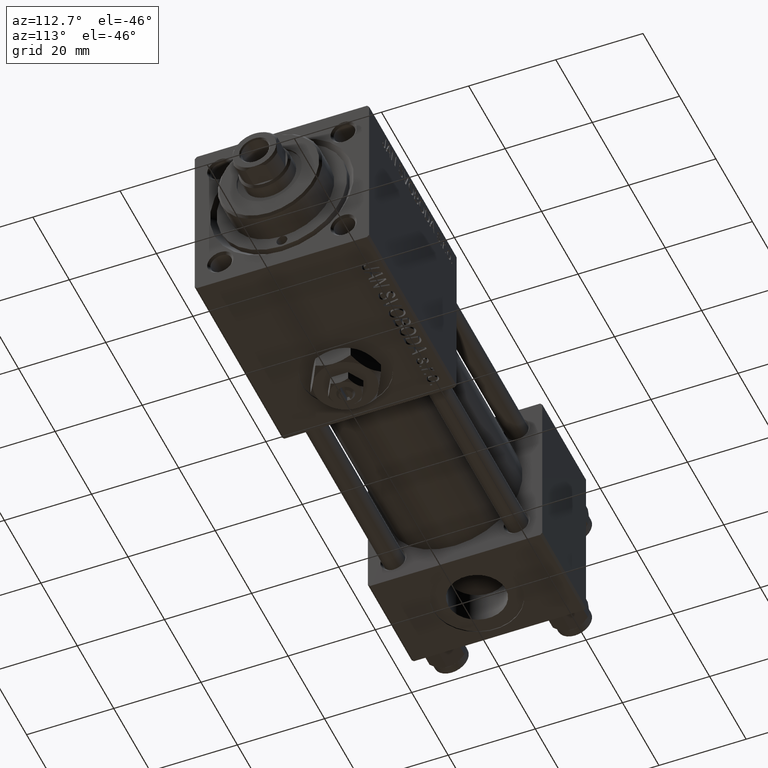
[diagram: clean part render]
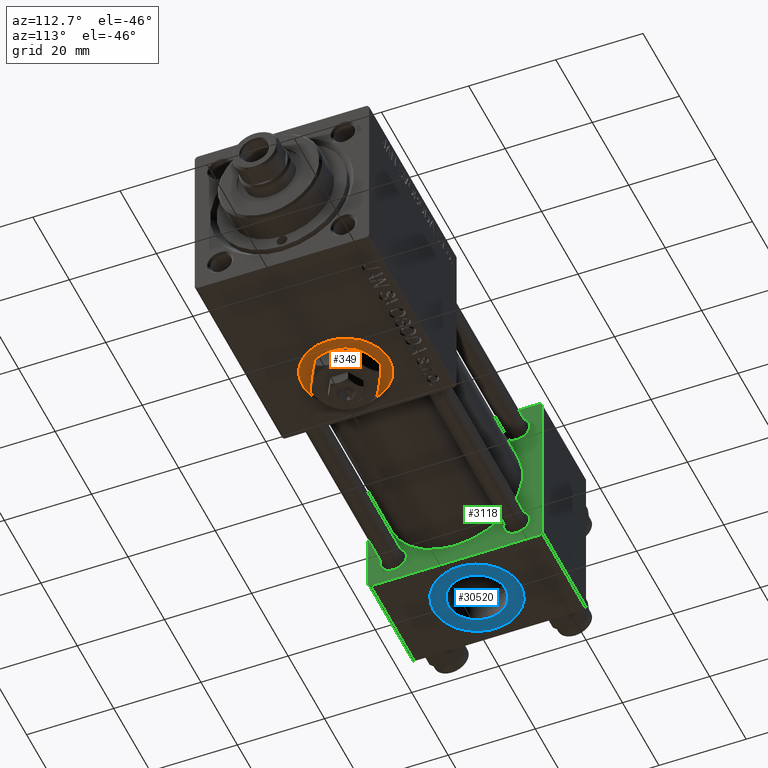
[diagram: same view with three faces highlighted in distinct colors, each labeled with its STEP entity id]
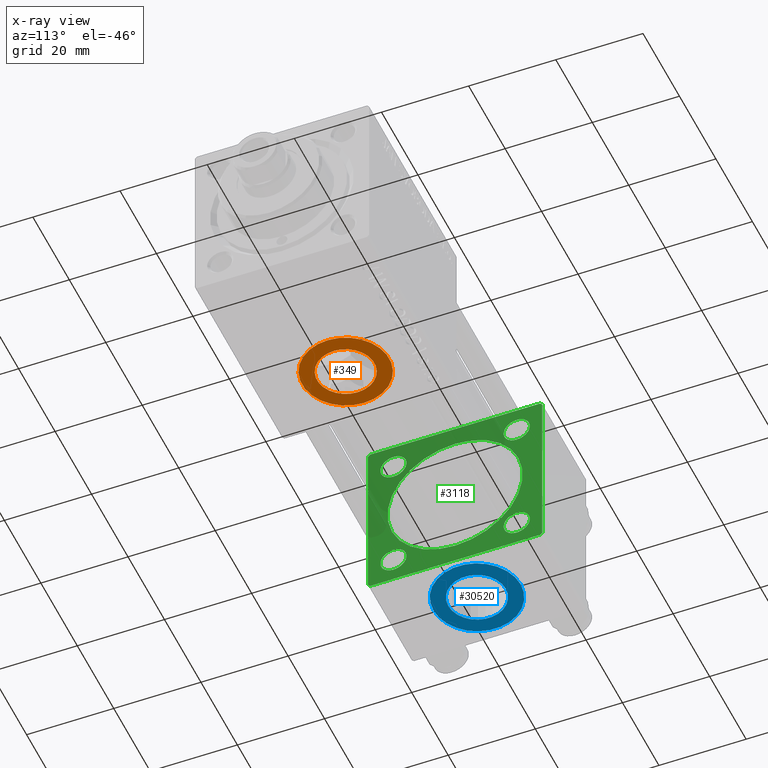
[diagram: x-ray of the same camera — body ghosted, the three highlighted faces saturated]
A machine part, auxiliary view with three faces highlighted in distinct colors.
The next image is the same camera in x-ray (body ghosted, the three faces saturated) — at least one of them is partly hidden behind the body in this view.
Their STEP definitions:

[orange] entity #349 — the highlighted planar face has unit normal (0, 0, -1).
#34 = CARTESIAN_POINT ( 'NONE',  ( 90.58000000000001251, 8.058175938389587461E-16, -19.80000000000000071 ) ) ;
#349 = ADVANCED_FACE ( 'NONE', ( #3793, #51873 ), #31896, .T. ) ;
#1843 = DIRECTION ( 'NONE',  ( 0.000000000000000000, 0.000000000000000000, -1.000000000000000000 ) ) ;
#1999 = EDGE_CURVE ( 'NONE', #26027, #27343, #49359, .T. ) ;
#2552 = DIRECTION ( 'NONE',  ( 0.000000000000000000, 0.000000000000000000, -1.000000000000000000 ) ) ;
#3793 = FACE_BOUND ( 'NONE', #34262, .T. ) ;
#4905 = EDGE_LOOP ( 'NONE', ( #6377, #44916 ) ) ;
#5894 = AXIS2_PLACEMENT_3D ( 'NONE', #47919, #24552, #28474 ) ;
#6377 = ORIENTED_EDGE ( 'NONE', *, *, #33233, .T. ) ;
#7918 = CIRCLE ( 'NONE', #39775, 6.580000000000002736 ) ;
#8280 = AXIS2_PLACEMENT_3D ( 'NONE', #8609, #23852, #44575 ) ;
#8609 = CARTESIAN_POINT ( 'NONE',  ( 84.00000000000000000, 0.000000000000000000, -19.80000000000000071 ) ) ;
#8858 = CARTESIAN_POINT ( 'NONE',  ( 74.00000000000000000, 0.000000000000000000, -19.80000000000000071 ) ) ;
#10087 = AXIS2_PLACEMENT_3D ( 'NONE', #12632, #28632, #44655 ) ;
#12632 = CARTESIAN_POINT ( 'NONE',  ( 84.00000000000000000, 0.000000000000000000, -19.80000000000000071 ) ) ;
#13680 = CARTESIAN_POINT ( 'NONE',  ( 84.00000000000000000, 0.000000000000000000, -19.80000000000000071 ) ) ;
#14392 = CARTESIAN_POINT ( 'NONE',  ( 84.00000000000000000, 0.000000000000000000, -19.80000000000000071 ) ) ;
#18375 = CIRCLE ( 'NONE', #40156, 10.00000000000000888 ) ;
#19218 = ORIENTED_EDGE ( 'NONE', *, *, #36317, .F. ) ;
#23852 = DIRECTION ( 'NONE',  ( 0.000000000000000000, 0.000000000000000000, -1.000000000000000000 ) ) ;
#24552 = DIRECTION ( 'NONE',  ( 0.000000000000000000, 0.000000000000000000, -1.000000000000000000 ) ) ;
#24732 = ORIENTED_EDGE ( 'NONE', *, *, #49758, .F. ) ;
#25751 = CARTESIAN_POINT ( 'NONE',  ( 94.00000000000001421, 1.224646799147354440E-15, -19.80000000000000071 ) ) ;
#26016 = DIRECTION ( 'NONE',  ( -1.000000000000000000, 0.000000000000000000, 0.000000000000000000 ) ) ;
#26027 = VERTEX_POINT ( 'NONE', #25751 ) ;
#27343 = VERTEX_POINT ( 'NONE', #8858 ) ;
#28474 = DIRECTION ( 'NONE',  ( -1.000000000000000000, 0.000000000000000000, -0.000000000000000000 ) ) ;
#28632 = DIRECTION ( 'NONE',  ( 0.000000000000000000, 0.000000000000000000, -1.000000000000000000 ) ) ;
#31632 = VERTEX_POINT ( 'NONE', #34 ) ;
#31896 = PLANE ( 'NONE',  #5894 ) ;
#32655 = CARTESIAN_POINT ( 'NONE',  ( 77.42000000000000171, 0.000000000000000000, -19.80000000000000071 ) ) ;
#33233 = EDGE_CURVE ( 'NONE', #27343, #26027, #18375, .T. ) ;
#34262 = EDGE_LOOP ( 'NONE', ( #24732, #19218 ) ) ;
#36317 = EDGE_CURVE ( 'NONE', #31632, #51025, #48650, .T. ) ;
#39775 = AXIS2_PLACEMENT_3D ( 'NONE', #13680, #1843, #26016 ) ;
#40156 = AXIS2_PLACEMENT_3D ( 'NONE', #14392, #2552, #50641 ) ;
#44575 = DIRECTION ( 'NONE',  ( -1.000000000000000000, 0.000000000000000000, 0.000000000000000000 ) ) ;
#44655 = DIRECTION ( 'NONE',  ( -1.000000000000000000, 0.000000000000000000, 0.000000000000000000 ) ) ;
#44916 = ORIENTED_EDGE ( 'NONE', *, *, #1999, .T. ) ;
#47919 = CARTESIAN_POINT ( 'NONE',  ( 84.00000000000000000, 0.000000000000000000, -19.80000000000000071 ) ) ;
#48650 = CIRCLE ( 'NONE', #10087, 6.580000000000002736 ) ;
#49359 = CIRCLE ( 'NONE', #8280, 10.00000000000000888 ) ;
#49758 = EDGE_CURVE ( 'NONE', #51025, #31632, #7918, .T. ) ;
#50641 = DIRECTION ( 'NONE',  ( -1.000000000000000000, 0.000000000000000000, 0.000000000000000000 ) ) ;
#51025 = VERTEX_POINT ( 'NONE', #32655 ) ;
#51873 = FACE_OUTER_BOUND ( 'NONE', #4905, .T. ) ;

[blue] entity #30520 — the highlighted planar face has unit normal (0, -0, -1).
#749 = CARTESIAN_POINT ( 'NONE',  ( 12.00000000000000000, 9.999999999999996447, -19.80000000000000426 ) ) ;
#1962 = DIRECTION ( 'NONE',  ( 0.000000000000000000, 1.000000000000000000, 0.000000000000000000 ) ) ;
#2432 = CIRCLE ( 'NONE', #10840, 6.580000000000000071 ) ;
#2856 = CARTESIAN_POINT ( 'NONE',  ( 12.00000000000000000, -4.904328641410901403E-15, -19.80000000000000426 ) ) ;
#2921 = DIRECTION ( 'NONE',  ( 0.000000000000000000, -1.734723475976806848E-16, -1.000000000000000000 ) ) ;
#3384 = ORIENTED_EDGE ( 'NONE', *, *, #30654, .F. ) ;
#4763 = AXIS2_PLACEMENT_3D ( 'NONE', #2856, #34902, #1962 ) ;
#7200 = VERTEX_POINT ( 'NONE', #27123 ) ;
#10033 = EDGE_CURVE ( 'NONE', #51256, #7200, #38574, .T. ) ;
#10840 = AXIS2_PLACEMENT_3D ( 'NONE', #29997, #2921, #13987 ) ;
#11747 = AXIS2_PLACEMENT_3D ( 'NONE', #23147, #38381, #39152 ) ;
#13565 = EDGE_CURVE ( 'NONE', #32866, #48769, #50444, .T. ) ;
#13987 = DIRECTION ( 'NONE',  ( 0.000000000000000000, 1.000000000000000000, 0.000000000000000000 ) ) ;
#15345 = FACE_OUTER_BOUND ( 'NONE', #20691, .T. ) ;
#15606 = ORIENTED_EDGE ( 'NONE', *, *, #10033, .F. ) ;
#16127 = FACE_BOUND ( 'NONE', #38398, .T. ) ;
#17354 = CIRCLE ( 'NONE', #4763, 10.00000000000000178 ) ;
#17590 = CARTESIAN_POINT ( 'NONE',  ( 12.00000000000000000, 6.579999999999994742, -19.80000000000000426 ) ) ;
#17722 = ORIENTED_EDGE ( 'NONE', *, *, #13565, .T. ) ;
#17863 = ORIENTED_EDGE ( 'NONE', *, *, #29295, .T. ) ;
#20016 = DIRECTION ( 'NONE',  ( 0.000000000000000000, 1.000000000000000000, 0.000000000000000000 ) ) ;
#20691 = EDGE_LOOP ( 'NONE', ( #17863, #17722 ) ) ;
#22827 = CARTESIAN_POINT ( 'NONE',  ( 12.00000000000000178, -10.00000000000000711, -19.80000000000000426 ) ) ;
#23147 = CARTESIAN_POINT ( 'NONE',  ( 12.00000000000000000, -4.904328641410902191E-15, -19.80000000000000426 ) ) ;
#23758 = DIRECTION ( 'NONE',  ( 0.000000000000000000, -1.734723475976806848E-16, -1.000000000000000000 ) ) ;
#24276 = DIRECTION ( 'NONE',  ( 0.000000000000000000, 1.000000000000000000, -1.734723475976806848E-16 ) ) ;
#26103 = AXIS2_PLACEMENT_3D ( 'NONE', #36287, #39961, #20016 ) ;
#27123 = CARTESIAN_POINT ( 'NONE',  ( 12.00000000000000000, -6.580000000000006288, -19.80000000000000426 ) ) ;
#28202 = CARTESIAN_POINT ( 'NONE',  ( 12.00000000000000000, -4.904328641410901403E-15, -19.80000000000000426 ) ) ;
#28427 = AXIS2_PLACEMENT_3D ( 'NONE', #28202, #23758, #24276 ) ;
#29295 = EDGE_CURVE ( 'NONE', #48769, #32866, #17354, .T. ) ;
#29997 = CARTESIAN_POINT ( 'NONE',  ( 12.00000000000000000, -4.904328641410902191E-15, -19.80000000000000426 ) ) ;
#30520 = ADVANCED_FACE ( 'NONE', ( #16127, #15345 ), #36351, .T. ) ;
#30654 = EDGE_CURVE ( 'NONE', #7200, #51256, #2432, .T. ) ;
#32866 = VERTEX_POINT ( 'NONE', #22827 ) ;
#34902 = DIRECTION ( 'NONE',  ( 0.000000000000000000, -1.734723475976806848E-16, -1.000000000000000000 ) ) ;
#36287 = CARTESIAN_POINT ( 'NONE',  ( 12.00000000000000000, -4.904328641410901403E-15, -19.80000000000000426 ) ) ;
#36351 = PLANE ( 'NONE',  #28427 ) ;
#38381 = DIRECTION ( 'NONE',  ( 0.000000000000000000, -1.734723475976806848E-16, -1.000000000000000000 ) ) ;
#38398 = EDGE_LOOP ( 'NONE', ( #15606, #3384 ) ) ;
#38574 = CIRCLE ( 'NONE', #11747, 6.580000000000000071 ) ;
#39152 = DIRECTION ( 'NONE',  ( 0.000000000000000000, 1.000000000000000000, 0.000000000000000000 ) ) ;
#39961 = DIRECTION ( 'NONE',  ( 0.000000000000000000, -1.734723475976806848E-16, -1.000000000000000000 ) ) ;
#48769 = VERTEX_POINT ( 'NONE', #749 ) ;
#50444 = CIRCLE ( 'NONE', #26103, 10.00000000000000178 ) ;
#51256 = VERTEX_POINT ( 'NONE', #17590 ) ;

[green] entity #3118 — the highlighted planar face has unit normal (-1, 0, 0).
#57 = CARTESIAN_POINT ( 'NONE',  ( 24.00000000000000000, 20.00000000000000000, 19.49999999999999289 ) ) ;
#116 = LINE ( 'NONE', #32171, #49166 ) ;
#137 = DIRECTION ( 'NONE',  ( -1.000000000000000000, -0.000000000000000000, -0.000000000000000000 ) ) ;
#559 = LINE ( 'NONE', #32348, #48805 ) ;
#866 = VERTEX_POINT ( 'NONE', #11291 ) ;
#980 = CARTESIAN_POINT ( 'NONE',  ( 24.00000000000000000, 14.14999999999999858, 14.15000000000000036 ) ) ;
#1206 = ORIENTED_EDGE ( 'NONE', *, *, #27602, .F. ) ;
#1369 = CARTESIAN_POINT ( 'NONE',  ( 24.00000000000000000, 14.14999999999999858, -17.14999999999997726 ) ) ;
#1487 = DIRECTION ( 'NONE',  ( 0.000000000000000000, 0.000000000000000000, 1.000000000000000000 ) ) ;
#2554 = FACE_OUTER_BOUND ( 'NONE', #29244, .T. ) ;
#2892 = EDGE_CURVE ( 'NONE', #25199, #49985, #19066, .T. ) ;
#3083 = EDGE_CURVE ( 'NONE', #37105, #39198, #13123, .T. ) ;
#3118 = ADVANCED_FACE ( 'NONE', ( #22787, #13875, #38804, #18077, #10459, #2554 ), #34087, .F. ) ;
#3623 = CARTESIAN_POINT ( 'NONE',  ( 24.00000000000000000, -2.602085213965210642E-15, 0.000000000000000000 ) ) ;
#3751 = CARTESIAN_POINT ( 'NONE',  ( 24.00000000000000000, -19.50000000000000711, -20.00000000000000000 ) ) ;
#3988 = VERTEX_POINT ( 'NONE', #37016 ) ;
#4346 = DIRECTION ( 'NONE',  ( 0.000000000000000000, 0.000000000000000000, 1.000000000000000000 ) ) ;
#4413 = DIRECTION ( 'NONE',  ( -1.000000000000000000, -0.000000000000000000, -0.000000000000000000 ) ) ;
#5123 = CARTESIAN_POINT ( 'NONE',  ( 24.00000000000000000, -14.14999999999999503, -14.15000000000000391 ) ) ;
#5217 = EDGE_LOOP ( 'NONE', ( #7790, #32338 ) ) ;
#5463 = DIRECTION ( 'NONE',  ( -1.000000000000000000, -0.000000000000000000, -0.000000000000000000 ) ) ;
#6179 = CIRCLE ( 'NONE', #17910, 2.999999999999976463 ) ;
#7269 = EDGE_LOOP ( 'NONE', ( #40313, #11693 ) ) ;
#7790 = ORIENTED_EDGE ( 'NONE', *, *, #35212, .F. ) ;
#7829 = CARTESIAN_POINT ( 'NONE',  ( 24.00000000000000000, 14.14999999999999858, 11.15000000000002700 ) ) ;
#8100 = EDGE_CURVE ( 'NONE', #35220, #43580, #27459, .T. ) ;
#8157 = EDGE_CURVE ( 'NONE', #14504, #13157, #38505, .T. ) ;
#8293 = CARTESIAN_POINT ( 'NONE',  ( 24.00000000000000000, -14.14999999999999503, 14.15000000000000391 ) ) ;
#8489 = LINE ( 'NONE', #16370, #16750 ) ;
#8497 = CARTESIAN_POINT ( 'NONE',  ( 24.00000000000000000, 14.14999999999999858, -11.15000000000002700 ) ) ;
#8855 = EDGE_CURVE ( 'NONE', #13157, #14504, #10877, .T. ) ;
#8993 = CARTESIAN_POINT ( 'NONE',  ( 24.00000000000000000, 19.50000000000000000, 20.00000000000000000 ) ) ;
#9088 = EDGE_CURVE ( 'NONE', #20775, #42710, #8489, .T. ) ;
#9485 = CIRCLE ( 'NONE', #45506, 3.000000000000004441 ) ;
#9860 = VERTEX_POINT ( 'NONE', #1369 ) ;
#10459 = FACE_BOUND ( 'NONE', #5217, .T. ) ;
#10877 = CIRCLE ( 'NONE', #13395, 3.000000000000004441 ) ;
#11291 = CARTESIAN_POINT ( 'NONE',  ( 24.00000000000000000, 14.14999999999999858, 17.14999999999997726 ) ) ;
#11693 = ORIENTED_EDGE ( 'NONE', *, *, #46421, .T. ) ;
#12566 = DIRECTION ( 'NONE',  ( 0.000000000000000000, 0.000000000000000000, 1.000000000000000000 ) ) ;
#12737 = AXIS2_PLACEMENT_3D ( 'NONE', #29342, #41171, #37230 ) ;
#13123 = LINE ( 'NONE', #48842, #45082 ) ;
#13157 = VERTEX_POINT ( 'NONE', #30128 ) ;
#13395 = AXIS2_PLACEMENT_3D ( 'NONE', #5123, #16692, #4346 ) ;
#13475 = EDGE_CURVE ( 'NONE', #20741, #35220, #559, .T. ) ;
#13643 = VECTOR ( 'NONE', #37346, 1000.000000000000000 ) ;
#13875 = FACE_BOUND ( 'NONE', #38137, .T. ) ;
#14225 = LINE ( 'NONE', #33155, #13643 ) ;
#14236 = EDGE_LOOP ( 'NONE', ( #47713, #33828 ) ) ;
#14402 = CIRCLE ( 'NONE', #12737, 3.000000000000004441 ) ;
#14504 = VERTEX_POINT ( 'NONE', #20590 ) ;
#14515 = VECTOR ( 'NONE', #25393, 1000.000000000000114 ) ;
#14657 = CARTESIAN_POINT ( 'NONE',  ( 24.00000000000000000, 0.000000000000000000, 0.000000000000000000 ) ) ;
#14779 = CARTESIAN_POINT ( 'NONE',  ( 24.00000000000000000, -14.14999999999999503, 11.15000000000000036 ) ) ;
#15704 = DIRECTION ( 'NONE',  ( 1.000000000000000000, 0.000000000000000000, 0.000000000000000000 ) ) ;
#16370 = CARTESIAN_POINT ( 'NONE',  ( 24.00000000000000000, 19.50000000000000000, 20.00000000000000000 ) ) ;
#16692 = DIRECTION ( 'NONE',  ( -1.000000000000000000, -0.000000000000000000, -0.000000000000000000 ) ) ;
#16750 = VECTOR ( 'NONE', #23736, 999.9999999999998863 ) ;
#17084 = EDGE_CURVE ( 'NONE', #49476, #17235, #14402, .T. ) ;
#17235 = VERTEX_POINT ( 'NONE', #34271 ) ;
#17910 = AXIS2_PLACEMENT_3D ( 'NONE', #29877, #5463, #45898 ) ;
#18077 = FACE_BOUND ( 'NONE', #14236, .T. ) ;
#18275 = ORIENTED_EDGE ( 'NONE', *, *, #8157, .T. ) ;
#18418 = CIRCLE ( 'NONE', #47768, 15.50000000000000000 ) ;
#19066 = CIRCLE ( 'NONE', #29143, 15.50000000000000000 ) ;
#19595 = CARTESIAN_POINT ( 'NONE',  ( 24.00000000000000000, -19.50000000000000711, -20.00000000000000000 ) ) ;
#19666 = DIRECTION ( 'NONE',  ( 0.000000000000000000, 0.000000000000000000, 1.000000000000000000 ) ) ;
#20135 = VERTEX_POINT ( 'NONE', #7829 ) ;
#20352 = EDGE_CURVE ( 'NONE', #3988, #20741, #24369, .T. ) ;
#20590 = CARTESIAN_POINT ( 'NONE',  ( 24.00000000000000000, -14.14999999999999503, -17.15000000000000924 ) ) ;
#20741 = VERTEX_POINT ( 'NONE', #47355 ) ;
#20775 = VERTEX_POINT ( 'NONE', #57 ) ;
#20898 = CARTESIAN_POINT ( 'NONE',  ( 24.00000000000000000, 14.14999999999999858, -14.15000000000000036 ) ) ;
#21496 = CARTESIAN_POINT ( 'NONE',  ( 24.00000000000000000, 14.14999999999999858, 14.15000000000000036 ) ) ;
#21854 = LINE ( 'NONE', #42057, #42948 ) ;
#22438 = AXIS2_PLACEMENT_3D ( 'NONE', #14657, #30676, #29889 ) ;
#22787 = FACE_BOUND ( 'NONE', #23439, .T. ) ;
#23267 = DIRECTION ( 'NONE',  ( 0.000000000000000000, 0.7071067811865401342, -0.7071067811865549002 ) ) ;
#23439 = EDGE_LOOP ( 'NONE', ( #18275, #30907 ) ) ;
#23548 = ORIENTED_EDGE ( 'NONE', *, *, #46885, .F. ) ;
#23736 = DIRECTION ( 'NONE',  ( 0.000000000000000000, -0.7071067811865425767, 0.7071067811865525687 ) ) ;
#23835 = ORIENTED_EDGE ( 'NONE', *, *, #40968, .T. ) ;
#23957 = DIRECTION ( 'NONE',  ( 0.000000000000000000, 8.673617379884036705E-17, -1.000000000000000000 ) ) ;
#24128 = DIRECTION ( 'NONE',  ( 1.000000000000000000, 0.000000000000000000, 0.000000000000000000 ) ) ;
#24369 = LINE ( 'NONE', #40643, #14515 ) ;
#24521 = CARTESIAN_POINT ( 'NONE',  ( 24.00000000000000000, 19.50000000000000711, -20.00000000000000711 ) ) ;
#24815 = EDGE_CURVE ( 'NONE', #866, #20135, #48234, .T. ) ;
#24992 = EDGE_CURVE ( 'NONE', #40931, #9860, #45691, .T. ) ;
#25184 = DIRECTION ( 'NONE',  ( -1.000000000000000000, -0.000000000000000000, -0.000000000000000000 ) ) ;
#25199 = VERTEX_POINT ( 'NONE', #39828 ) ;
#25393 = DIRECTION ( 'NONE',  ( -0.000000000000000000, -0.7071067811865500152, -0.7071067811865451302 ) ) ;
#25579 = AXIS2_PLACEMENT_3D ( 'NONE', #20898, #137, #44260 ) ;
#27348 = ORIENTED_EDGE ( 'NONE', *, *, #48899, .T. ) ;
#27459 = LINE ( 'NONE', #19595, #31798 ) ;
#27602 = EDGE_CURVE ( 'NONE', #37105, #43580, #116, .T. ) ;
#29143 = AXIS2_PLACEMENT_3D ( 'NONE', #51698, #15704, #12566 ) ;
#29214 = DIRECTION ( 'NONE',  ( 0.000000000000000000, -1.000000000000000000, -2.602085213965210149E-16 ) ) ;
#29244 = EDGE_LOOP ( 'NONE', ( #1206, #43489, #23548, #34658, #23835, #47140, #50030, #44886 ) ) ;
#29342 = CARTESIAN_POINT ( 'NONE',  ( 24.00000000000000000, -14.14999999999999503, 14.15000000000000391 ) ) ;
#29877 = CARTESIAN_POINT ( 'NONE',  ( 24.00000000000000000, 14.14999999999999858, -14.15000000000000036 ) ) ;
#29889 = DIRECTION ( 'NONE',  ( -0.000000000000000000, 0.000000000000000000, 1.000000000000000000 ) ) ;
#30128 = CARTESIAN_POINT ( 'NONE',  ( 24.00000000000000000, -14.14999999999999503, -11.15000000000000036 ) ) ;
#30354 = ORIENTED_EDGE ( 'NONE', *, *, #24992, .T. ) ;
#30598 = AXIS2_PLACEMENT_3D ( 'NONE', #980, #4413, #1487 ) ;
#30676 = DIRECTION ( 'NONE',  ( -1.000000000000000000, 0.000000000000000000, -0.000000000000000000 ) ) ;
#30907 = ORIENTED_EDGE ( 'NONE', *, *, #8855, .T. ) ;
#31798 = VECTOR ( 'NONE', #23267, 1000.000000000000000 ) ;
#32171 = CARTESIAN_POINT ( 'NONE',  ( 24.00000000000000000, 20.00000000000000000, -20.00000000000000711 ) ) ;
#32338 = ORIENTED_EDGE ( 'NONE', *, *, #2892, .F. ) ;
#32348 = CARTESIAN_POINT ( 'NONE',  ( 24.00000000000000000, -20.00000000000000355, 19.99999999999998934 ) ) ;
#33155 = CARTESIAN_POINT ( 'NONE',  ( 24.00000000000000000, 20.00000000000000000, 20.00000000000000000 ) ) ;
#33828 = ORIENTED_EDGE ( 'NONE', *, *, #24815, .T. ) ;
#34087 = PLANE ( 'NONE',  #22438 ) ;
#34271 = CARTESIAN_POINT ( 'NONE',  ( 24.00000000000000000, -14.14999999999999503, 17.15000000000000924 ) ) ;
#34658 = ORIENTED_EDGE ( 'NONE', *, *, #9088, .T. ) ;
#35212 = EDGE_CURVE ( 'NONE', #49985, #25199, #18418, .T. ) ;
#35220 = VERTEX_POINT ( 'NONE', #48025 ) ;
#37016 = CARTESIAN_POINT ( 'NONE',  ( 24.00000000000000000, -19.49999999999999289, 19.99999999999998934 ) ) ;
#37105 = VERTEX_POINT ( 'NONE', #24521 ) ;
#37227 = CIRCLE ( 'NONE', #47273, 2.999999999999973355 ) ;
#37230 = DIRECTION ( 'NONE',  ( 0.000000000000000000, 0.000000000000000000, 1.000000000000000000 ) ) ;
#37346 = DIRECTION ( 'NONE',  ( 0.000000000000000000, 0.000000000000000000, -1.000000000000000000 ) ) ;
#38028 = DIRECTION ( 'NONE',  ( -0.000000000000000000, 0.7071067811865524577, 0.7071067811865426878 ) ) ;
#38137 = EDGE_LOOP ( 'NONE', ( #27348, #30354 ) ) ;
#38227 = CARTESIAN_POINT ( 'NONE',  ( 24.00000000000000000, -2.602085213965210642E-15, 15.50000000000000000 ) ) ;
#38496 = DIRECTION ( 'NONE',  ( 0.000000000000000000, 0.000000000000000000, 1.000000000000000000 ) ) ;
#38505 = CIRCLE ( 'NONE', #40196, 3.000000000000004441 ) ;
#38804 = FACE_BOUND ( 'NONE', #7269, .T. ) ;
#39198 = VERTEX_POINT ( 'NONE', #48925 ) ;
#39828 = CARTESIAN_POINT ( 'NONE',  ( 24.00000000000000000, -7.038826752868131828E-16, -15.50000000000000000 ) ) ;
#40196 = AXIS2_PLACEMENT_3D ( 'NONE', #43207, #42435, #38496 ) ;
#40313 = ORIENTED_EDGE ( 'NONE', *, *, #17084, .T. ) ;
#40327 = DIRECTION ( 'NONE',  ( -1.000000000000000000, -0.000000000000000000, -0.000000000000000000 ) ) ;
#40587 = DIRECTION ( 'NONE',  ( 0.000000000000000000, 0.000000000000000000, 1.000000000000000000 ) ) ;
#40643 = CARTESIAN_POINT ( 'NONE',  ( 24.00000000000000000, -20.00000000000000355, 19.49999999999998224 ) ) ;
#40931 = VERTEX_POINT ( 'NONE', #8497 ) ;
#40968 = EDGE_CURVE ( 'NONE', #42710, #3988, #21854, .T. ) ;
#41171 = DIRECTION ( 'NONE',  ( -1.000000000000000000, -0.000000000000000000, -0.000000000000000000 ) ) ;
#41190 = DIRECTION ( 'NONE',  ( 0.000000000000000000, 0.000000000000000000, 1.000000000000000000 ) ) ;
#42057 = CARTESIAN_POINT ( 'NONE',  ( 24.00000000000000000, 20.00000000000000000, 20.00000000000000000 ) ) ;
#42435 = DIRECTION ( 'NONE',  ( -1.000000000000000000, -0.000000000000000000, -0.000000000000000000 ) ) ;
#42710 = VERTEX_POINT ( 'NONE', #8993 ) ;
#42948 = VECTOR ( 'NONE', #29214, 1000.000000000000000 ) ;
#43207 = CARTESIAN_POINT ( 'NONE',  ( 24.00000000000000000, -14.14999999999999503, -14.15000000000000391 ) ) ;
#43452 = DIRECTION ( 'NONE',  ( 0.000000000000000000, -1.000000000000000000, 1.734723475976807094E-16 ) ) ;
#43489 = ORIENTED_EDGE ( 'NONE', *, *, #3083, .T. ) ;
#43580 = VERTEX_POINT ( 'NONE', #3751 ) ;
#44260 = DIRECTION ( 'NONE',  ( 0.000000000000000000, 0.000000000000000000, 1.000000000000000000 ) ) ;
#44886 = ORIENTED_EDGE ( 'NONE', *, *, #8100, .T. ) ;
#45082 = VECTOR ( 'NONE', #38028, 1000.000000000000000 ) ;
#45506 = AXIS2_PLACEMENT_3D ( 'NONE', #8293, #40327, #40587 ) ;
#45691 = CIRCLE ( 'NONE', #25579, 2.999999999999976463 ) ;
#45898 = DIRECTION ( 'NONE',  ( 0.000000000000000000, 0.000000000000000000, 1.000000000000000000 ) ) ;
#46421 = EDGE_CURVE ( 'NONE', #17235, #49476, #9485, .T. ) ;
#46885 = EDGE_CURVE ( 'NONE', #20775, #39198, #14225, .T. ) ;
#47140 = ORIENTED_EDGE ( 'NONE', *, *, #20352, .T. ) ;
#47273 = AXIS2_PLACEMENT_3D ( 'NONE', #21496, #25184, #41190 ) ;
#47355 = CARTESIAN_POINT ( 'NONE',  ( 24.00000000000000000, -20.00000000000000355, 19.49999999999998224 ) ) ;
#47713 = ORIENTED_EDGE ( 'NONE', *, *, #48926, .T. ) ;
#47768 = AXIS2_PLACEMENT_3D ( 'NONE', #3623, #24128, #19666 ) ;
#48025 = CARTESIAN_POINT ( 'NONE',  ( 24.00000000000000000, -20.00000000000000000, -19.49999999999999645 ) ) ;
#48234 = CIRCLE ( 'NONE', #30598, 2.999999999999973355 ) ;
#48805 = VECTOR ( 'NONE', #23957, 1000.000000000000000 ) ;
#48842 = CARTESIAN_POINT ( 'NONE',  ( 24.00000000000000000, 20.00000000000000000, -19.50000000000002132 ) ) ;
#48899 = EDGE_CURVE ( 'NONE', #9860, #40931, #6179, .T. ) ;
#48925 = CARTESIAN_POINT ( 'NONE',  ( 24.00000000000000000, 20.00000000000000000, -19.50000000000002132 ) ) ;
#48926 = EDGE_CURVE ( 'NONE', #20135, #866, #37227, .T. ) ;
#49166 = VECTOR ( 'NONE', #43452, 1000.000000000000000 ) ;
#49476 = VERTEX_POINT ( 'NONE', #14779 ) ;
#49985 = VERTEX_POINT ( 'NONE', #38227 ) ;
#50030 = ORIENTED_EDGE ( 'NONE', *, *, #13475, .T. ) ;
#51698 = CARTESIAN_POINT ( 'NONE',  ( 24.00000000000000000, -2.602085213965210642E-15, 0.000000000000000000 ) ) ;